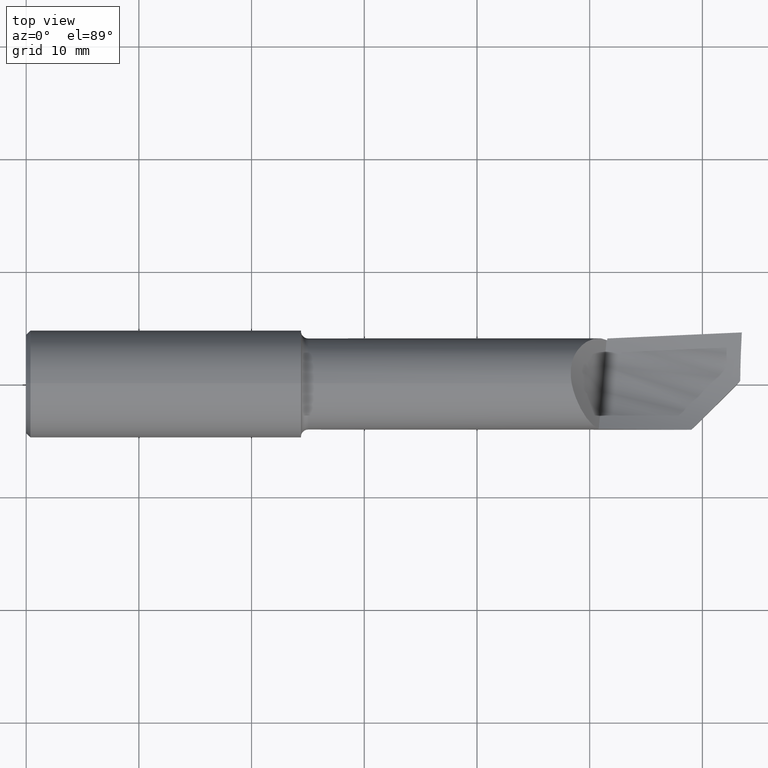
[diagram: clean part render]
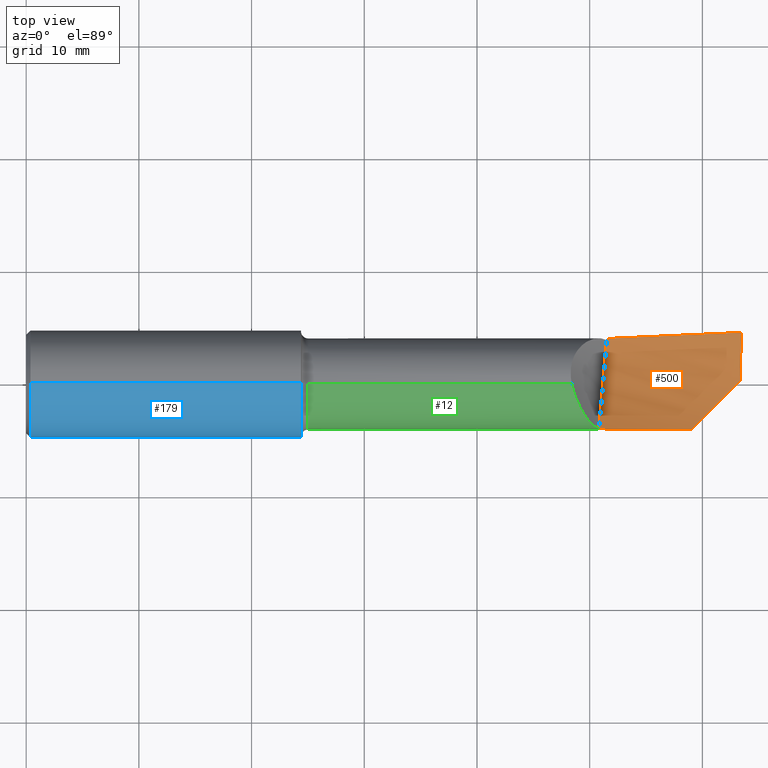
[diagram: same view with three faces highlighted in distinct colors, each labeled with its STEP entity id]
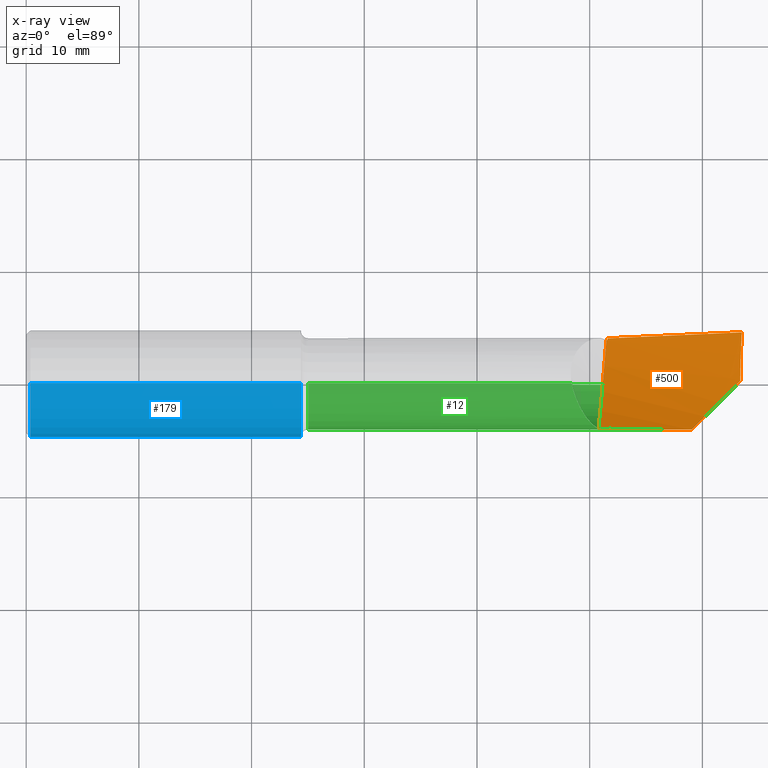
[diagram: x-ray of the same camera — body ghosted, the three highlighted faces saturated]
A machine part, top view with three faces highlighted in distinct colors.
The next image is the same camera in x-ray (body ghosted, the three faces saturated) — at least one of them is partly hidden behind the body in this view.
Their STEP definitions:

[orange] entity #500 — the highlighted face is a freeform B-spline surface patch.
#33 = CARTESIAN_POINT ( 'NONE',  ( 2.223486111111111718, 0.2408132209504114107, -0.004941945525003923687 ) ) ;
#35 = CARTESIAN_POINT ( 'NONE',  ( 2.009195001453673690, -0.06046963619795499983, -0.01795442159163836149 ) ) ;
#36 = VERTEX_POINT ( 'NONE', #697 ) ;
#42 = CARTESIAN_POINT ( 'NONE',  ( 2.223486111111112162, -0.09327156789459546682, -0.04401002359548109033 ) ) ;
#46 = CARTESIAN_POINT ( 'NONE',  ( 2.223486111111112162, 0.07870278400594224455, -0.06665087654416056162 ) ) ;
#47 = CARTESIAN_POINT ( 'NONE',  ( 2.011454554289580976, -0.03433757518528796765, -0.02648742753736284955 ) ) ;
#52 = CARTESIAN_POINT ( 'NONE',  ( 2.000003586370350472, -0.1571084000406534620, 0.03028119278803288739 ) ) ;
#57 = CARTESIAN_POINT ( 'NONE',  ( 2.029999999999999361, 0.1598430344486135579, -0.04184427717685813147 ) ) ;
#61 = EDGE_CURVE ( 'NONE', #717, #450, #265, .T. ) ;
#105 = CARTESIAN_POINT ( 'NONE',  ( 2.323412058823201232, -0.1598873373180759727, 0.006003279548363496358 ) ) ;
#108 = FACE_OUTER_BOUND ( 'NONE', #683, .T. ) ;
#109 = CARTESIAN_POINT ( 'NONE',  ( 2.022757704662406564, 0.1005392708257397683, -0.04621065204862845333 ) ) ;
#118 = CARTESIAN_POINT ( 'NONE',  ( 2.323412058823201232, -0.1598873373180759727, 0.006003279548363496358 ) ) ;
#120 = CARTESIAN_POINT ( 'NONE',  ( 2.018235381141217033, 0.04620596180036872641, -0.04294116995918772356 ) ) ;
#131 = CARTESIAN_POINT ( 'NONE',  ( 2.351061791073665752, -0.1322376050676115078, -0.008107157670034536787 ) ) ;
#135 = CARTESIAN_POINT ( 'NONE',  ( 2.186717174740822500, 0.1682795056034425141, -0.02935864683914268455 ) ) ;
#137 = B_SPLINE_CURVE_WITH_KNOTS ( 'NONE', 3,
 ( #886, #547, #263, #343, #542, #816, #471, #139 ),
 .UNSPECIFIED., .F., .F.,
 ( 4, 2, 2, 4 ),
 ( 1.939515495877487783E-16, 0.002191257025601935776, 0.003286885538402807387, 0.004382514051203679865 ),
 .UNSPECIFIED. ) ;
#139 = CARTESIAN_POINT ( 'NONE',  ( 2.494407449520328779, 0.01110805337905102289, -0.03352468991477909610 ) ) ;
#185 = ORIENTED_EDGE ( 'NONE', *, *, #580, .F. ) ;
#197 = CARTESIAN_POINT ( 'NONE',  ( 2.465082417912259238, -0.01821697822901855585, -0.03424927294712318965 ) ) ;
#233 = CARTESIAN_POINT ( 'NONE',  ( 2.500000000000000444, 0.08598717595026884875, -0.05533045006982081210 ) ) ;
#242 =( BOUNDED_CURVE ( )  B_SPLINE_CURVE ( 3, ( #257, #269, #671, #403 ),
 .UNSPECIFIED., .F., .T. ) 
 B_SPLINE_CURVE_WITH_KNOTS ( ( 4, 4 ),
 ( 0.008972332436567429306, 0.009112971590816455747 ),
 .UNSPECIFIED. ) 
 CURVE ( )  GEOMETRIC_REPRESENTATION_ITEM ( )  RATIONAL_B_SPLINE_CURVE ( ( 0.9632833094529360540, 0.9638752748440635454, 0.9644776404261011793, 0.9650904061990488447 ) ) 
 REPRESENTATION_ITEM ( '' )  );
#245 = CARTESIAN_POINT ( 'NONE',  ( 1.670458333333335155, -0.1014840485697859340, -0.01836996026877232499 ) ) ;
#255 = CARTESIAN_POINT ( 'NONE',  ( 2.025019391175700179, 0.1276644948702526927, -0.04552162564978746301 ) ) ;
#257 = CARTESIAN_POINT ( 'NONE',  ( 2.029999999999999805, 0.1542653020987288237, -0.04245252134311836706 ) ) ;
#263 = CARTESIAN_POINT ( 'NONE',  ( 2.497231174846422874, 0.1254377550949552222, -0.01865380066881132393 ) ) ;
#265 = B_SPLINE_CURVE_WITH_KNOTS ( 'NONE', 3,
 ( #530, #255, #109, #120, #397, #47, #35, #669, #306, #52 ),
 .UNSPECIFIED., .F., .F.,
 ( 4, 2, 2, 2, 4 ),
 ( 0.000000000000000000, 0.2499999999999998335, 0.4999999999999998890, 0.7499999999999998890, 1.000000000000000000 ),
 .UNSPECIFIED. ) ;
#268 = ORIENTED_EDGE ( 'NONE', *, *, #764, .F. ) ;
#269 = CARTESIAN_POINT ( 'NONE',  ( 2.029999999999999805, 0.1561262550897936086, -0.04226014624030486472 ) ) ;
#272 = ORIENTED_EDGE ( 'NONE', *, *, #350, .F. ) ;
#277 = VERTEX_POINT ( 'NONE', #57 ) ;
#291 = EDGE_CURVE ( 'NONE', #36, #277, #840, .T. ) ;
#306 = CARTESIAN_POINT ( 'NONE',  ( 2.002418580511000634, -0.1346007289890601699, 0.01590888888765517109 ) ) ;
#323 = CARTESIAN_POINT ( 'NONE',  ( 2.027284874116872082, 0.1542105332948809637, -0.04265104243636441694 ) ) ;
#333 = CARTESIAN_POINT ( 'NONE',  ( 2.436173526948572032, -0.04712586919270571328, -0.03128886985532088050 ) ) ;
#334 = CARTESIAN_POINT ( 'NONE',  ( 2.029999999999999805, 0.1542653020987288237, -0.04245252134311836706 ) ) ;
#343 = CARTESIAN_POINT ( 'NONE',  ( 2.495833931003399897, 0.08314484020584045343, -0.02702716625801724476 ) ) ;
#350 = EDGE_CURVE ( 'NONE', #407, #450, #519, .T. ) ;
#357 = CARTESIAN_POINT ( 'NONE',  ( 2.000003586370350472, -0.1571084000406534620, 0.03028119278803288739 ) ) ;
#382 = CARTESIAN_POINT ( 'NONE',  ( 1.393944444444447095, -0.1923982421995542591, 0.1414564692234294152 ) ) ;
#388 = ORIENTED_EDGE ( 'NONE', *, *, #61, .T. ) ;
#390 = CARTESIAN_POINT ( 'NONE',  ( 2.500000000000000000, 0.2373499999999998666, 0.02630577477736445804 ) ) ;
#393 = VERTEX_POINT ( 'NONE', #488 ) ;
#397 = CARTESIAN_POINT ( 'NONE',  ( 2.015974744133381513, 0.01900270331230246093, -0.03898138259684970353 ) ) ;
#403 = CARTESIAN_POINT ( 'NONE',  ( 2.029999999999999361, 0.1598430344486135579, -0.04184427717685813147 ) ) ;
#407 = VERTEX_POINT ( 'NONE', #105 ) ;
#412 = CARTESIAN_POINT ( 'NONE',  ( 2.494407449520328779, 0.01110805337905102289, -0.03352468991477909610 ) ) ;
#414 = CARTESIAN_POINT ( 'NONE',  ( 2.029999999999999361, 0.1598430344486135579, -0.04184427717685813147 ) ) ;
#446 = ORIENTED_EDGE ( 'NONE', *, *, #877, .F. ) ;
#450 = VERTEX_POINT ( 'NONE', #719 ) ;
#471 = CARTESIAN_POINT ( 'NONE',  ( 2.494569682067505401, 0.02564875020758466267, -0.03323689752369726746 ) ) ;
#488 = CARTESIAN_POINT ( 'NONE',  ( 2.029999999999999805, 0.1542653020987288237, -0.04245252134311836706 ) ) ;
#500 = ADVANCED_FACE ( 'NONE', ( #108 ), #708, .T. ) ;
#508 = CARTESIAN_POINT ( 'NONE',  ( 1.670458333333335155, 0.05877053544978420169, -0.08474958240213688321 ) ) ;
#514 = CARTESIAN_POINT ( 'NONE',  ( 1.393944444444447095, -0.1021323038075256096, -0.004923987388156895843 ) ) ;
#519 =( BOUNDED_CURVE ( )  B_SPLINE_CURVE ( 2, ( #766, #842, #357 ),
 .UNSPECIFIED., .F., .T. ) 
 B_SPLINE_CURVE_WITH_KNOTS ( ( 3, 3 ),
 ( 0.1599919409910769141, 0.4517522036031803578 ),
 .UNSPECIFIED. ) 
 CURVE ( )  GEOMETRIC_REPRESENTATION_ITEM ( )  RATIONAL_B_SPLINE_CURVE ( ( 0.9618055048689031494, 0.9600703758538854382, 0.9639596509495850229 ) ) 
 REPRESENTATION_ITEM ( '' )  );
#527 = CARTESIAN_POINT ( 'NONE',  ( 2.223486111111111718, -0.2338867790495883781, 0.05755349507973278600 ) ) ;
#530 = CARTESIAN_POINT ( 'NONE',  ( 2.027284874116872082, 0.1542105332948809637, -0.04265104243636442388 ) ) ;
#542 = CARTESIAN_POINT ( 'NONE',  ( 2.495442795287653226, 0.06891719885559582925, -0.02920140382691752481 ) ) ;
#547 = CARTESIAN_POINT ( 'NONE',  ( 2.498459295159100257, 0.1531161984673418408, -0.01061910458213925768 ) ) ;
#549 = B_SPLINE_CURVE_WITH_KNOTS ( 'NONE', 3,
 ( #412, #197, #333, #618, #131, #118 ),
 .UNSPECIFIED., .F., .F.,
 ( 4, 2, 4 ),
 ( 0.0001976420098985557055, 0.003309543841853181210, 0.006421445673807806877 ),
 .UNSPECIFIED. ) ;
#580 = EDGE_CURVE ( 'NONE', #717, #393, #792, .T. ) ;
#582 = CARTESIAN_POINT ( 'NONE',  ( 1.946972222222223659, 0.2360709303782696777, -0.03602127311708337026 ) ) ;
#583 = EDGE_CURVE ( 'NONE', #36, #646, #137, .T. ) ;
#618 = CARTESIAN_POINT ( 'NONE',  ( 2.379163599928374673, -0.1041357962129026149, -0.01821439059637124450 ) ) ;
#646 = VERTEX_POINT ( 'NONE', #695 ) ;
#649 = CARTESIAN_POINT ( 'NONE',  ( 2.500000000000000000, -0.2373499999999998944, 0.02630577477736438866 ) ) ;
#651 = CARTESIAN_POINT ( 'NONE',  ( 2.027284874116872082, 0.1542105332948809637, -0.04265104243636442388 ) ) ;
#658 = CARTESIAN_POINT ( 'NONE',  ( 2.500000000000000444, -0.08598717595026886262, -0.05533045006982085373 ) ) ;
#668 = CARTESIAN_POINT ( 'NONE',  ( 1.393944444444447095, 0.2187040169769186304, -0.09589353077657035429 ) ) ;
#669 = CARTESIAN_POINT ( 'NONE',  ( 2.004677014564354209, -0.1106030912189968213, 0.003245381402337165194 ) ) ;
#671 = CARTESIAN_POINT ( 'NONE',  ( 2.029999999999999805, 0.1579855181878122572, -0.04205738952016539745 ) ) ;
#683 = EDGE_LOOP ( 'NONE', ( #760, #706, #446, #185, #388, #272, #268 ) ) ;
#695 = CARTESIAN_POINT ( 'NONE',  ( 2.494407449520328779, 0.01110805337905102289, -0.03352468991477909610 ) ) ;
#697 = CARTESIAN_POINT ( 'NONE',  ( 2.500000000000000000, 0.1802500000000000213, 0.000000000000000000 ) ) ;
#706 = ORIENTED_EDGE ( 'NONE', *, *, #291, .T. ) ;
#708 =( BOUNDED_SURFACE ( )  B_SPLINE_SURFACE ( 3, 2, ( 
 ( #649, #527, #722, #803, #382 ),
 ( #658, #42, #734, #245, #514 ),
 ( #233, #46, #781, #508, #798 ),
 ( #390, #33, #582, #787, #668 ) ),
 .UNSPECIFIED., .F., .F., .T. ) 
 B_SPLINE_SURFACE_WITH_KNOTS ( ( 4, 4 ),
 ( 3, 2, 3 ),
 ( 0.000000000000000000, 1.000000000000000000 ),
 ( 0.000000000000000000, 0.5000000000000000000, 1.000000000000000000 ),
 .UNSPECIFIED. ) 
 GEOMETRIC_REPRESENTATION_ITEM ( )  RATIONAL_B_SPLINE_SURFACE ( (
 ( 1.000000000000000000, 0.9914448613738103822, 1.000000000000000000, 0.9914448613738103822, 1.000000000000000000),
 ( 0.9200984424982643350, 0.9122268727729505589, 0.9200984424982643350, 0.9122268727729505589, 0.9200984424982643350),
 ( 0.9200984424982643350, 0.9122268727729505589, 0.9200984424982643350, 0.9122268727729505589, 0.9200984424982643350),
 ( 1.000000000000000000, 0.9914448613738103822, 1.000000000000000000, 0.9914448613738103822, 1.000000000000000000) ) ) 
 REPRESENTATION_ITEM ( '' )  SURFACE ( )  );
#717 = VERTEX_POINT ( 'NONE', #651 ) ;
#719 = CARTESIAN_POINT ( 'NONE',  ( 2.000003586370350472, -0.1571084000406534620, 0.03028119278803288739 ) ) ;
#722 = CARTESIAN_POINT ( 'NONE',  ( 1.946972222222223659, -0.2224540593611508410, 0.08684012759308309959 ) ) ;
#734 = CARTESIAN_POINT ( 'NONE',  ( 1.946972222222223659, -0.09737780823219073512, -0.03118999193212671633 ) ) ;
#754 = CARTESIAN_POINT ( 'NONE',  ( 2.343392187315193720, 0.1752463192107806822, -0.01537391020325984750 ) ) ;
#760 = ORIENTED_EDGE ( 'NONE', *, *, #583, .F. ) ;
#764 = EDGE_CURVE ( 'NONE', #646, #407, #549, .T. ) ;
#766 = CARTESIAN_POINT ( 'NONE',  ( 2.323412058823201232, -0.1598873373180759727, 0.006003279548363496358 ) ) ;
#781 = CARTESIAN_POINT ( 'NONE',  ( 1.946972222222223659, 0.06873665972786324740, -0.07570022947314875017 ) ) ;
#787 = CARTESIAN_POINT ( 'NONE',  ( 1.670458333333335155, 0.2313286398061279170, -0.06710060070916283592 ) ) ;
#792 =( BOUNDED_CURVE ( )  B_SPLINE_CURVE ( 2, ( #323, #807, #334 ),
 .UNSPECIFIED., .F., .T. ) 
 B_SPLINE_CURVE_WITH_KNOTS ( ( 3, 3 ),
 ( 0.5729901640989578659, 0.5754500642221486162 ),
 .UNSPECIFIED. ) 
 CURVE ( )  GEOMETRIC_REPRESENTATION_ITEM ( )  RATIONAL_B_SPLINE_CURVE ( ( 0.9633404495379964683, 0.9633116795879205219, 0.9632833094529361651 ) ) 
 REPRESENTATION_ITEM ( '' )  );
#798 = CARTESIAN_POINT ( 'NONE',  ( 1.393944444444447095, 0.04680185373770474888, -0.09091116333842569341 ) ) ;
#803 = CARTESIAN_POINT ( 'NONE',  ( 1.670458333333335155, -0.2110213396727133595, 0.1161267601064334132 ) ) ;
#807 = CARTESIAN_POINT ( 'NONE',  ( 2.028642356361447963, 0.1542379815764027551, -0.04255179951310362335 ) ) ;
#816 = CARTESIAN_POINT ( 'NONE',  ( 2.494810976656546053, 0.04019976981517756065, -0.03230595464864573912 ) ) ;
#840 = B_SPLINE_CURVE_WITH_KNOTS ( 'NONE', 3,
 ( #894, #754, #135, #414 ),
 .UNSPECIFIED., .F., .F.,
 ( 4, 4 ),
 ( 1.533019407665957813E-21, 0.01199687628376511564 ),
 .UNSPECIFIED. ) ;
#842 = CARTESIAN_POINT ( 'NONE',  ( 2.161345453012176065, -0.1594275611039128182, 0.01824865210722924347 ) ) ;
#877 = EDGE_CURVE ( 'NONE', #393, #277, #242, .T. ) ;
#886 = CARTESIAN_POINT ( 'NONE',  ( 2.500000000000000000, 0.1802500000000000213, 0.000000000000000000 ) ) ;
#894 = CARTESIAN_POINT ( 'NONE',  ( 2.500000000000000000, 0.1802500000000000213, 0.000000000000000000 ) ) ;

[blue] entity #179 — the highlighted cylindrical surface (partial cylindrical patch) has radius 4.7587 mm, axis along (-1, -0, -0).
#22 = EDGE_CURVE ( 'NONE', #176, #111, #827, .T. ) ;
#34 = EDGE_CURVE ( 'NONE', #296, #111, #799, .T. ) ;
#39 = CARTESIAN_POINT ( 'NONE',  ( 0.9598893049320387227, 0.000000000000000000, 0.1873499999999999888 ) ) ;
#77 = CARTESIAN_POINT ( 'NONE',  ( 0.9598893049320387227, 0.000000000000000000, 0.000000000000000000 ) ) ;
#93 = ORIENTED_EDGE ( 'NONE', *, *, #34, .F. ) ;
#111 = VERTEX_POINT ( 'NONE', #379 ) ;
#144 = CARTESIAN_POINT ( 'NONE',  ( 0.000000000000000000, 0.000000000000000000, 0.1873499999999999888 ) ) ;
#176 = VERTEX_POINT ( 'NONE', #39 ) ;
#179 = ADVANCED_FACE ( 'NONE', ( #864 ), #868, .T. ) ;
#204 = DIRECTION ( 'NONE',  ( -1.000000000000000000, -0.000000000000000000, -0.000000000000000000 ) ) ;
#211 = AXIS2_PLACEMENT_3D ( 'NONE', #241, #731, #246 ) ;
#241 = CARTESIAN_POINT ( 'NONE',  ( 0.000000000000000000, 0.000000000000000000, 0.000000000000000000 ) ) ;
#246 = DIRECTION ( 'NONE',  ( 0.000000000000000000, 0.000000000000000000, 1.000000000000000000 ) ) ;
#282 = ORIENTED_EDGE ( 'NONE', *, *, #22, .T. ) ;
#296 = VERTEX_POINT ( 'NONE', #478 ) ;
#297 = DIRECTION ( 'NONE',  ( 0.000000000000000000, 0.000000000000000000, -1.000000000000000000 ) ) ;
#310 = CIRCLE ( 'NONE', #428, 0.1873499999999999888 ) ;
#312 = ORIENTED_EDGE ( 'NONE', *, *, #660, .F. ) ;
#371 = ORIENTED_EDGE ( 'NONE', *, *, #489, .F. ) ;
#379 = CARTESIAN_POINT ( 'NONE',  ( 0.01499999999999999424, 0.000000000000000000, 0.1873499999999999888 ) ) ;
#395 = CARTESIAN_POINT ( 'NONE',  ( 0.9598893049320387227, 2.294375778202566330E-17, -0.1873499999999999888 ) ) ;
#398 = EDGE_LOOP ( 'NONE', ( #371, #312, #282, #93 ) ) ;
#418 = DIRECTION ( 'NONE',  ( -1.000000000000000000, -0.000000000000000000, -0.000000000000000000 ) ) ;
#424 = DIRECTION ( 'NONE',  ( 1.000000000000000000, 0.000000000000000000, 0.000000000000000000 ) ) ;
#428 = AXIS2_PLACEMENT_3D ( 'NONE', #77, #424, #297 ) ;
#478 = CARTESIAN_POINT ( 'NONE',  ( 0.01499999999999999424, 2.294375778202566330E-17, -0.1873499999999999888 ) ) ;
#479 = CARTESIAN_POINT ( 'NONE',  ( 0.01499999999999999424, 0.000000000000000000, 0.000000000000000000 ) ) ;
#484 = AXIS2_PLACEMENT_3D ( 'NONE', #479, #418, #834 ) ;
#489 = EDGE_CURVE ( 'NONE', #509, #296, #520, .T. ) ;
#509 = VERTEX_POINT ( 'NONE', #395 ) ;
#520 = LINE ( 'NONE', #852, #657 ) ;
#587 = DIRECTION ( 'NONE',  ( -1.000000000000000000, -0.000000000000000000, -0.000000000000000000 ) ) ;
#657 = VECTOR ( 'NONE', #587, 39.37007874015748143 ) ;
#660 = EDGE_CURVE ( 'NONE', #176, #509, #310, .T. ) ;
#690 = VECTOR ( 'NONE', #204, 39.37007874015748143 ) ;
#731 = DIRECTION ( 'NONE',  ( -1.000000000000000000, -0.000000000000000000, -0.000000000000000000 ) ) ;
#799 = CIRCLE ( 'NONE', #484, 0.1873499999999999888 ) ;
#827 = LINE ( 'NONE', #144, #690 ) ;
#834 = DIRECTION ( 'NONE',  ( 0.000000000000000000, 0.000000000000000000, 1.000000000000000000 ) ) ;
#852 = CARTESIAN_POINT ( 'NONE',  ( 0.000000000000000000, 2.294375778202566330E-17, -0.1873499999999999888 ) ) ;
#864 = FACE_OUTER_BOUND ( 'NONE', #398, .T. ) ;
#868 = CYLINDRICAL_SURFACE ( 'NONE', #211, 0.1873499999999999888 ) ;

[green] entity #12 — the highlighted cylindrical surface (partial cylindrical patch) has radius 4.064 mm, axis along (-1, -0, -0).
#10 = CIRCLE ( 'NONE', #771, 0.1600000000000000588 ) ;
#12 = ADVANCED_FACE ( 'NONE', ( #494 ), #895, .T. ) ;
#49 = EDGE_CURVE ( 'NONE', #567, #195, #182, .T. ) ;
#50 = CARTESIAN_POINT ( 'NONE',  ( 1.923710116206622356, -0.05982548317615465905, 0.1487065581048735985 ) ) ;
#51 = CARTESIAN_POINT ( 'NONE',  ( 2.087992314429198526, -0.01486618112345823410, -0.1594768838119421661 ) ) ;
#55 = CARTESIAN_POINT ( 'NONE',  ( 1.971831175739685804, -0.1372403312143781473, 0.08225780022395047519 ) ) ;
#67 = CARTESIAN_POINT ( 'NONE',  ( 1.927730632535663791, -0.06918183519060874809, 0.1446636348963691032 ) ) ;
#102 = CARTESIAN_POINT ( 'NONE',  ( 2.478780704266192902, 0.000000000000000000, -0.1600000000000001976 ) ) ;
#105 = CARTESIAN_POINT ( 'NONE',  ( 2.323412058823201232, -0.1598873373180759727, 0.006003279548363496358 ) ) ;
#106 = CARTESIAN_POINT ( 'NONE',  ( 2.478748940125911737, -0.004550456015366202700, -0.1599352786287386308 ) ) ;
#114 = CARTESIAN_POINT ( 'NONE',  ( 0.000000000000000000, 0.000000000000000000, 0.1600000000000000311 ) ) ;
#122 = CARTESIAN_POINT ( 'NONE',  ( 1.967067781708563778, -0.1322132346123526259, 0.09013961311026562340 ) ) ;
#125 = VECTOR ( 'NONE', #147, 39.37007874015748143 ) ;
#136 = DIRECTION ( 'NONE',  ( 0.000000000000000000, 0.000000000000000000, 1.000000000000000000 ) ) ;
#147 = DIRECTION ( 'NONE',  ( -1.000000000000000000, -0.000000000000000000, -0.000000000000000000 ) ) ;
#153 = DIRECTION ( 'NONE',  ( 0.000000000000000000, 0.000000000000000000, 1.000000000000000000 ) ) ;
#163 = VERTEX_POINT ( 'NONE', #236 ) ;
#182 =( BOUNDED_CURVE ( )  B_SPLINE_CURVE ( 3, ( #106, #457, #650, #102 ),
 .UNSPECIFIED., .F., .T. ) 
 B_SPLINE_CURVE_WITH_KNOTS ( ( 4, 4 ),
 ( 0.04250843745934431567, 0.07095262296442619854 ),
 .UNSPECIFIED. ) 
 CURVE ( )  GEOMETRIC_REPRESENTATION_ITEM ( )  RATIONAL_B_SPLINE_CURVE ( ( 1.000000000000000000, 0.9999325784956913932, 0.9999325784956913932, 1.000000000000000000 ) ) 
 REPRESENTATION_ITEM ( '' )  );
#183 = VERTEX_POINT ( 'NONE', #524 ) ;
#186 = CARTESIAN_POINT ( 'NONE',  ( 1.972403216868211961, -0.1378127441165235834, 0.08129515218389060660 ) ) ;
#187 = CARTESIAN_POINT ( 'NONE',  ( 2.030000000000000249, -0.02213587642817147969, -0.1584613611413102918 ) ) ;
#190 = VERTEX_POINT ( 'NONE', #818 ) ;
#191 = CARTESIAN_POINT ( 'NONE',  ( 1.943801536792042040, -0.09983213966299005204, 0.1250581178324622345 ) ) ;
#195 = VERTEX_POINT ( 'NONE', #472 ) ;
#201 = CARTESIAN_POINT ( 'NONE',  ( 1.905499570275073884, -5.321508395890695654E-06, 0.1600360725456251021 ) ) ;
#203 = CARTESIAN_POINT ( 'NONE',  ( 2.030000000000000249, 1.959434878635765723E-17, -0.1600000000000000311 ) ) ;
#213 = CARTESIAN_POINT ( 'NONE',  ( 0.000000000000000000, 1.959434878635765723E-17, -0.1600000000000000311 ) ) ;
#236 = CARTESIAN_POINT ( 'NONE',  ( 1.905499570275073884, -5.321508395890695654E-06, 0.1600360725456251021 ) ) ;
#240 = CARTESIAN_POINT ( 'NONE',  ( 2.319870034274885917, -0.1634293618663911207, -0.08833263620950590478 ) ) ;
#244 = CARTESIAN_POINT ( 'NONE',  ( 2.030000000000000249, 0.000000000000000000, -0.1600000000000001976 ) ) ;
#253 = CARTESIAN_POINT ( 'NONE',  ( 1.970686411317581266, -0.1360754190141646169, 0.08417086520664436577 ) ) ;
#256 = VERTEX_POINT ( 'NONE', #203 ) ;
#261 = ORIENTED_EDGE ( 'NONE', *, *, #611, .T. ) ;
#262 = CARTESIAN_POINT ( 'NONE',  ( 1.941734093859665888, -0.09629173245855743302, 0.1277826349456419042 ) ) ;
#273 = CARTESIAN_POINT ( 'NONE',  ( 1.954448323822290057, -0.1165108477017978289, 0.1100396227483133732 ) ) ;
#299 = DIRECTION ( 'NONE',  ( 0.000000000000000000, 1.065814103640150279E-14, 1.000000000000000000 ) ) ;
#309 = CARTESIAN_POINT ( 'NONE',  ( 2.384384738279100802, -0.09891465786217680523, -0.1572504416521150195 ) ) ;
#311 = EDGE_CURVE ( 'NONE', #190, #256, #830, .T. ) ;
#321 = ORIENTED_EDGE ( 'NONE', *, *, #358, .F. ) ;
#327 = EDGE_LOOP ( 'NONE', ( #813, #735, #261, #724, #739, #589, #606, #439, #474, #321 ) ) ;
#328 = CARTESIAN_POINT ( 'NONE',  ( 1.940759290874832788, -0.09459274486717339503, 0.1290511943090032476 ) ) ;
#332 = VERTEX_POINT ( 'NONE', #421 ) ;
#350 = EDGE_CURVE ( 'NONE', #407, #450, #519, .T. ) ;
#357 = CARTESIAN_POINT ( 'NONE',  ( 2.000003586370350472, -0.1571084000406534620, 0.03028119278803288739 ) ) ;
#358 = EDGE_CURVE ( 'NONE', #861, #183, #10, .T. ) ;
#364 = DIRECTION ( 'NONE',  ( -1.000000000000000000, -0.000000000000000000, -0.000000000000000000 ) ) ;
#366 = EDGE_CURVE ( 'NONE', #256, #861, #425, .T. ) ;
#394 = CARTESIAN_POINT ( 'NONE',  ( 2.000003586370350472, -0.1571084000406534620, 0.03028119278803288739 ) ) ;
#401 = DIRECTION ( 'NONE',  ( 1.000000000000000000, 0.000000000000000000, 0.000000000000000000 ) ) ;
#407 = VERTEX_POINT ( 'NONE', #105 ) ;
#421 = CARTESIAN_POINT ( 'NONE',  ( 2.203948786660800074, -1.067128122525102820E-18, -0.1600000000000001976 ) ) ;
#425 = LINE ( 'NONE', #213, #125 ) ;
#439 = ORIENTED_EDGE ( 'NONE', *, *, #833, .T. ) ;
#443 = EDGE_CURVE ( 'NONE', #407, #567, #610, .T. ) ;
#448 = DIRECTION ( 'NONE',  ( -1.000000000000000000, -0.000000000000000000, -0.000000000000000000 ) ) ;
#450 = VERTEX_POINT ( 'NONE', #719 ) ;
#457 = CARTESIAN_POINT ( 'NONE',  ( 2.478756876198067172, -0.003033995314915745659, -0.1599784247549441152 ) ) ;
#469 = CARTESIAN_POINT ( 'NONE',  ( 1.950154800209213057, -0.1101789860753032285, 0.1163432509058041214 ) ) ;
#470 = EDGE_CURVE ( 'NONE', #163, #183, #867, .T. ) ;
#472 = CARTESIAN_POINT ( 'NONE',  ( 2.478780704266192902, 0.000000000000000000, -0.1600000000000001976 ) ) ;
#474 = ORIENTED_EDGE ( 'NONE', *, *, #470, .T. ) ;
#485 = VECTOR ( 'NONE', #536, 39.37007874015748143 ) ;
#494 = FACE_OUTER_BOUND ( 'NONE', #327, .T. ) ;
#519 =( BOUNDED_CURVE ( )  B_SPLINE_CURVE ( 2, ( #766, #842, #357 ),
 .UNSPECIFIED., .F., .T. ) 
 B_SPLINE_CURVE_WITH_KNOTS ( ( 3, 3 ),
 ( 0.1599919409910769141, 0.4517522036031803578 ),
 .UNSPECIFIED. ) 
 CURVE ( )  GEOMETRIC_REPRESENTATION_ITEM ( )  RATIONAL_B_SPLINE_CURVE ( ( 0.9618055048689031494, 0.9600703758538854382, 0.9639596509495850229 ) ) 
 REPRESENTATION_ITEM ( '' )  );
#524 = CARTESIAN_POINT ( 'NONE',  ( 0.9848893049320387449, 0.000000000000000000, 0.1600000000000000588 ) ) ;
#533 = CARTESIAN_POINT ( 'NONE',  ( 2.145972836415287244, -0.007469114906849857148, -0.1600000000000001421 ) ) ;
#536 = DIRECTION ( 'NONE',  ( 1.000000000000000000, -0.000000000000000000, -0.000000000000000000 ) ) ;
#551 = CARTESIAN_POINT ( 'NONE',  ( 1.968263002804379269, -0.1335275578795433460, 0.08818173555411705500 ) ) ;
#557 = AXIS2_PLACEMENT_3D ( 'NONE', #808, #401, #299 ) ;
#567 = VERTEX_POINT ( 'NONE', #749 ) ;
#589 = ORIENTED_EDGE ( 'NONE', *, *, #443, .F. ) ;
#590 = LINE ( 'NONE', #244, #485 ) ;
#602 = CARTESIAN_POINT ( 'NONE',  ( 1.908321266255012416, -0.01512874508115673311, 0.1599997989343705240 ) ) ;
#606 = ORIENTED_EDGE ( 'NONE', *, *, #350, .T. ) ;
#607 = CARTESIAN_POINT ( 'NONE',  ( 1.945058651676304873, -0.1019188604637240175, 0.1233581916393091116 ) ) ;
#610 =( BOUNDED_CURVE ( )  B_SPLINE_CURVE ( 3, ( #729, #240, #309, #726 ),
 .UNSPECIFIED., .F., .T. ) 
 B_SPLINE_CURVE_WITH_KNOTS ( ( 4, 4 ),
 ( 6.245656000938134333, 7.825537448469403579 ),
 .UNSPECIFIED. ) 
 CURVE ( )  GEOMETRIC_REPRESENTATION_ITEM ( )  RATIONAL_B_SPLINE_CURVE ( ( 1.000000000000000000, 0.8025916143218190246, 0.8025916143218190246, 1.000000000000000000 ) ) 
 REPRESENTATION_ITEM ( '' )  );
#611 = EDGE_CURVE ( 'NONE', #190, #332, #815, .T. ) ;
#614 = AXIS2_PLACEMENT_3D ( 'NONE', #617, #823, #136 ) ;
#617 = CARTESIAN_POINT ( 'NONE',  ( 0.000000000000000000, 0.000000000000000000, 0.000000000000000000 ) ) ;
#650 = CARTESIAN_POINT ( 'NONE',  ( 2.478767464958737232, -0.001517074370034950364, -0.1600000000000000588 ) ) ;
#678 = CARTESIAN_POINT ( 'NONE',  ( 1.942072882114659782, -0.09687641013233819209, 0.1273390942867528852 ) ) ;
#679 = B_SPLINE_CURVE_WITH_KNOTS ( 'NONE', 3,
 ( #394, #733, #880, #186, #55, #253, #890, #551, #122, #810, #897, #273, #469, #607, #191, #885, #678, #262, #328, #814, #688, #67, #50, #820, #602, #201 ),
 .UNSPECIFIED., .F., .F.,
 ( 4, 2, 2, 2, 2, 2, 2, 1, 2, 2, 1, 2, 2, 4 ),
 ( 0.000000000000000000, 0.2309238082572681316, 0.2453565462733464375, 0.2597892842894246601, 0.2886547603215811608, 0.3463857123858942177, 0.4618476165145216084, 0.4907130925466774984, 0.4979294615547167902, 0.5051458305627561929, 0.5195785685788346653, 0.5773095206431495541, 0.6927714247717802198, 0.9236952330290405522 ),
 .UNSPECIFIED. ) ;
#684 = CARTESIAN_POINT ( 'NONE',  ( 0.9848893049320387449, 1.959434878635766031E-17, -0.1600000000000000588 ) ) ;
#688 = CARTESIAN_POINT ( 'NONE',  ( 1.934547028978160998, -0.08312007229182802326, 0.1368191396612473965 ) ) ;
#700 = CARTESIAN_POINT ( 'NONE',  ( 0.9848893049320387449, 0.000000000000000000, 0.000000000000000000 ) ) ;
#719 = CARTESIAN_POINT ( 'NONE',  ( 2.000003586370350472, -0.1571084000406534620, 0.03028119278803288739 ) ) ;
#724 = ORIENTED_EDGE ( 'NONE', *, *, #755, .T. ) ;
#726 = CARTESIAN_POINT ( 'NONE',  ( 2.478748940125911737, -0.004550456015366202700, -0.1599352786287386308 ) ) ;
#729 = CARTESIAN_POINT ( 'NONE',  ( 2.323412058823201232, -0.1598873373180759727, 0.006003279548363496358 ) ) ;
#733 = CARTESIAN_POINT ( 'NONE',  ( 1.991182001259840906, -0.1537373995828802131, 0.04781097845734430529 ) ) ;
#735 = ORIENTED_EDGE ( 'NONE', *, *, #311, .F. ) ;
#739 = ORIENTED_EDGE ( 'NONE', *, *, #49, .F. ) ;
#749 = CARTESIAN_POINT ( 'NONE',  ( 2.478748940125911737, -0.004550456015366202700, -0.1599352786287386308 ) ) ;
#755 = EDGE_CURVE ( 'NONE', #332, #195, #590, .T. ) ;
#766 = CARTESIAN_POINT ( 'NONE',  ( 2.323412058823201232, -0.1598873373180759727, 0.006003279548363496358 ) ) ;
#771 = AXIS2_PLACEMENT_3D ( 'NONE', #700, #364, #153 ) ;
#808 = CARTESIAN_POINT ( 'NONE',  ( 2.030000000000000249, 0.000000000000000000, 0.000000000000000000 ) ) ;
#810 = CARTESIAN_POINT ( 'NONE',  ( 1.963522731818630795, -0.1281692476368516964, 0.09588848206912445327 ) ) ;
#813 = ORIENTED_EDGE ( 'NONE', *, *, #366, .F. ) ;
#814 = CARTESIAN_POINT ( 'NONE',  ( 1.937550865401894917, -0.08890564060886460562, 0.1331806242859209510 ) ) ;
#815 = B_SPLINE_CURVE_WITH_KNOTS ( 'NONE', 3,
 ( #187, #51, #533, #841 ),
 .UNSPECIFIED., .F., .F.,
 ( 4, 4 ),
 ( 7.640432587545480923E-10, 0.004454102412321751109 ),
 .UNSPECIFIED. ) ;
#818 = CARTESIAN_POINT ( 'NONE',  ( 2.030000000000000249, -0.02213587642817147969, -0.1584613611413102918 ) ) ;
#820 = CARTESIAN_POINT ( 'NONE',  ( 1.913219811117362390, -0.03242496649403758813, 0.1578592315656404954 ) ) ;
#823 = DIRECTION ( 'NONE',  ( -1.000000000000000000, -0.000000000000000000, -0.000000000000000000 ) ) ;
#830 = CIRCLE ( 'NONE', #557, 0.1600000000000000311 ) ;
#833 = EDGE_CURVE ( 'NONE', #450, #163, #679, .T. ) ;
#841 = CARTESIAN_POINT ( 'NONE',  ( 2.203948786660800074, -1.067128122525102820E-18, -0.1600000000000001976 ) ) ;
#842 = CARTESIAN_POINT ( 'NONE',  ( 2.161345453012176065, -0.1594275611039128182, 0.01824865210722924347 ) ) ;
#860 = VECTOR ( 'NONE', #448, 39.37007874015748143 ) ;
#861 = VERTEX_POINT ( 'NONE', #684 ) ;
#867 = LINE ( 'NONE', #114, #860 ) ;
#880 = CARTESIAN_POINT ( 'NONE',  ( 1.982122117650245707, -0.1473708838629672335, 0.06482977887281925200 ) ) ;
#885 = CARTESIAN_POINT ( 'NONE',  ( 1.942565574718986054, -0.09772217910376380934, 0.1266911973465854324 ) ) ;
#890 = CARTESIAN_POINT ( 'NONE',  ( 1.970076141146861470, -0.1354441933464277936, 0.08518378536076137708 ) ) ;
#895 = CYLINDRICAL_SURFACE ( 'NONE', #614, 0.1600000000000000311 ) ;
#897 = CARTESIAN_POINT ( 'NONE',  ( 1.961213516422029679, -0.1253386137749565310, 0.09955453755940989191 ) ) ;